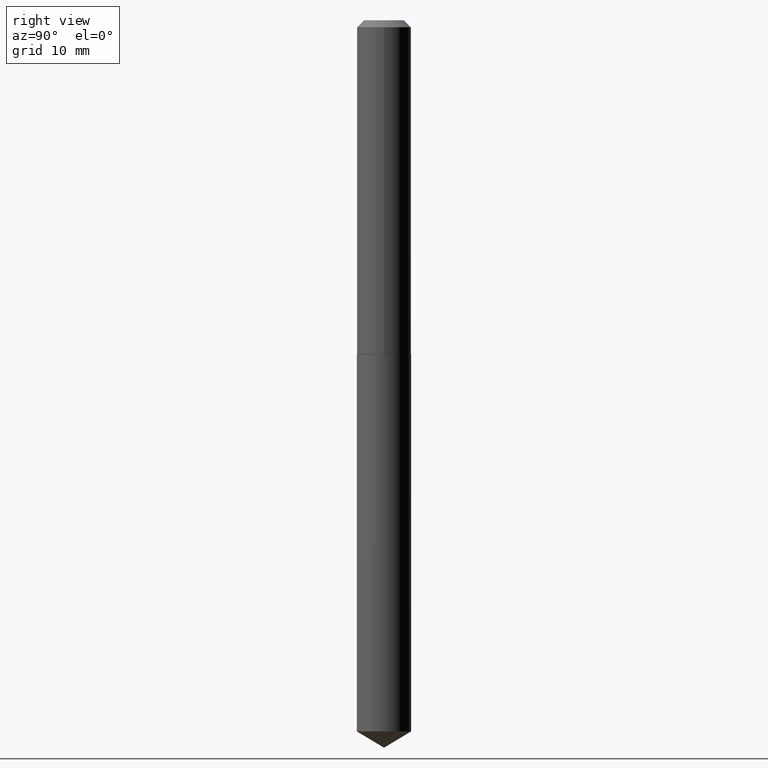
[diagram: clean part render]
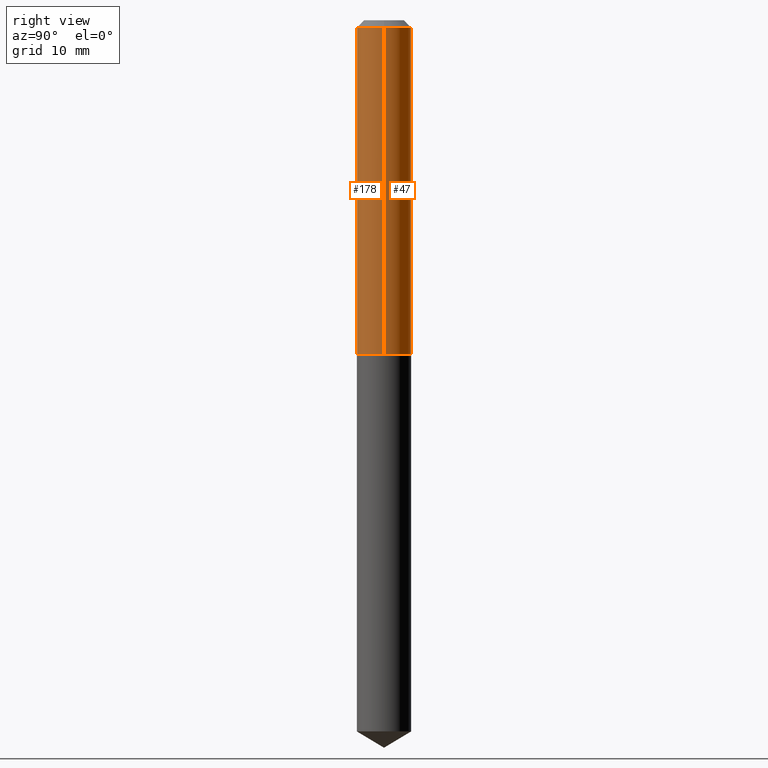
[diagram: same view with one multi-face feature highlighted, each face labeled with its STEP entity id]
A machine part, right view. The highlighted faces form ONE feature: a constant-radius fillet chain: 2 tangent blend faces with common blend radius 3.0734 mm. The faces share edges in the B-rep.
Their STEP definitions:
[1] entity #178 (Cylinder):
#5 = FACE_OUTER_BOUND ( 'NONE', #345, .T. ) ;
#7 = EDGE_CURVE ( 'NONE', #283, #144, #314, .T. ) ;
#50 = DIRECTION ( 'NONE',  ( -2.445468806185136877E-29, 3.491481338843145188E-15, 1.000000000000000000 ) ) ;
#56 = VERTEX_POINT ( 'NONE', #74 ) ;
#66 = CYLINDRICAL_SURFACE ( 'NONE', #192, 0.1210000000000001075 ) ;
#70 = DIRECTION ( 'NONE',  ( -2.445468806185136597E-29, 3.491481338843145583E-15, 1.000000000000000000 ) ) ;
#71 = CARTESIAN_POINT ( 'NONE',  ( 0.1210000000000001907, -6.052482900884591109E-15, -1.491500000000000270 ) ) ;
#73 = CARTESIAN_POINT ( 'NONE',  ( 0.1210000000000000242, -9.540472758388873963E-16, -0.03125000000000020123 ) ) ;
#74 = CARTESIAN_POINT ( 'NONE',  ( -0.1210000000000001907, -4.347787706614829839E-15, -1.491500000000000270 ) ) ;
#86 = CARTESIAN_POINT ( 'NONE',  ( -0.1210000000000000242, -1.798569894091978081E-15, -0.03125000000000020123 ) ) ;
#87 = CIRCLE ( 'NONE', #246, 0.1210000000000001907 ) ;
#94 = VERTEX_POINT ( 'NONE', #86 ) ;
#106 = DIRECTION ( 'NONE',  ( 1.000000000000000000, -6.982962677686266711E-15, 0.000000000000000000 ) ) ;
#113 = AXIS2_PLACEMENT_3D ( 'NONE', #177, #277, #106 ) ;
#134 = CARTESIAN_POINT ( 'NONE',  ( 3.647416724425131194E-29, -5.207544416884551827E-15, -1.491500000000000270 ) ) ;
#136 = EDGE_CURVE ( 'NONE', #94, #144, #301, .T. ) ;
#144 = VERTEX_POINT ( 'NONE', #73 ) ;
#153 = VECTOR ( 'NONE', #50, 39.37007874015748143 ) ;
#163 = LINE ( 'NONE', #186, #233 ) ;
#177 = CARTESIAN_POINT ( 'NONE',  ( 7.642090019328600035E-31, -1.091087918388489897E-16, -0.03125000000000020123 ) ) ;
#178 = ADVANCED_FACE ( 'NONE', ( #5 ), #66, .T. ) ;
#184 = DIRECTION ( 'NONE',  ( 1.000000000000000000, -6.982962677686266711E-15, 4.876176775795935793E-29 ) ) ;
#186 = CARTESIAN_POINT ( 'NONE',  ( -0.1210000000000001075, 8.597567102697219885E-16, -5.951911459208441511E-30 ) ) ;
#191 = DIRECTION ( 'NONE',  ( -2.445468806185136597E-29, 3.491481338843145583E-15, 1.000000000000000000 ) ) ;
#192 = AXIS2_PLACEMENT_3D ( 'NONE', #218, #70, #184 ) ;
#218 = CARTESIAN_POINT ( 'NONE',  ( 0.000000000000000000, 0.000000000000000000, 0.000000000000000000 ) ) ;
#233 = VECTOR ( 'NONE', #329, 39.37007874015748143 ) ;
#235 = ORIENTED_EDGE ( 'NONE', *, *, #361, .T. ) ;
#246 = AXIS2_PLACEMENT_3D ( 'NONE', #134, #191, #357 ) ;
#252 = ORIENTED_EDGE ( 'NONE', *, *, #136, .F. ) ;
#254 = ORIENTED_EDGE ( 'NONE', *, *, #266, .F. ) ;
#265 = ORIENTED_EDGE ( 'NONE', *, *, #7, .T. ) ;
#266 = EDGE_CURVE ( 'NONE', #56, #94, #163, .T. ) ;
#277 = DIRECTION ( 'NONE',  ( -2.445468806185136597E-29, 3.491481338843145583E-15, 1.000000000000000000 ) ) ;
#283 = VERTEX_POINT ( 'NONE', #71 ) ;
#296 = CARTESIAN_POINT ( 'NONE',  ( 0.1210000000000001075, -8.449384840000389859E-16, 5.900173898713087522E-30 ) ) ;
#301 = CIRCLE ( 'NONE', #113, 0.1210000000000000242 ) ;
#314 = LINE ( 'NONE', #296, #153 ) ;
#329 = DIRECTION ( 'NONE',  ( -2.445468806185136877E-29, 3.491481338843145188E-15, 1.000000000000000000 ) ) ;
#345 = EDGE_LOOP ( 'NONE', ( #254, #235, #265, #252 ) ) ;
#357 = DIRECTION ( 'NONE',  ( 1.000000000000000000, -6.982962677686265922E-15, 0.000000000000000000 ) ) ;
#361 = EDGE_CURVE ( 'NONE', #56, #283, #87, .T. ) ;
[2] entity #47 (Cylinder):
#7 = EDGE_CURVE ( 'NONE', #283, #144, #314, .T. ) ;
#29 = DIRECTION ( 'NONE',  ( 1.000000000000000000, -6.982962677686266711E-15, 0.000000000000000000 ) ) ;
#32 = AXIS2_PLACEMENT_3D ( 'NONE', #157, #128, #242 ) ;
#47 = ADVANCED_FACE ( 'NONE', ( #316 ), #380, .T. ) ;
#50 = DIRECTION ( 'NONE',  ( -2.445468806185136877E-29, 3.491481338843145188E-15, 1.000000000000000000 ) ) ;
#56 = VERTEX_POINT ( 'NONE', #74 ) ;
#71 = CARTESIAN_POINT ( 'NONE',  ( 0.1210000000000001907, -6.052482900884591109E-15, -1.491500000000000270 ) ) ;
#73 = CARTESIAN_POINT ( 'NONE',  ( 0.1210000000000000242, -9.540472758388873963E-16, -0.03125000000000020123 ) ) ;
#74 = CARTESIAN_POINT ( 'NONE',  ( -0.1210000000000001907, -4.347787706614829839E-15, -1.491500000000000270 ) ) ;
#75 = ORIENTED_EDGE ( 'NONE', *, *, #7, .F. ) ;
#86 = CARTESIAN_POINT ( 'NONE',  ( -0.1210000000000000242, -1.798569894091978081E-15, -0.03125000000000020123 ) ) ;
#94 = VERTEX_POINT ( 'NONE', #86 ) ;
#99 = CARTESIAN_POINT ( 'NONE',  ( 7.642090019328600035E-31, -1.091087918388489897E-16, -0.03125000000000020123 ) ) ;
#120 = ORIENTED_EDGE ( 'NONE', *, *, #286, .T. ) ;
#128 = DIRECTION ( 'NONE',  ( -2.445468806185136597E-29, 3.491481338843145583E-15, 1.000000000000000000 ) ) ;
#132 = CARTESIAN_POINT ( 'NONE',  ( 0.000000000000000000, 0.000000000000000000, 0.000000000000000000 ) ) ;
#144 = VERTEX_POINT ( 'NONE', #73 ) ;
#153 = VECTOR ( 'NONE', #50, 39.37007874015748143 ) ;
#154 = AXIS2_PLACEMENT_3D ( 'NONE', #99, #324, #29 ) ;
#157 = CARTESIAN_POINT ( 'NONE',  ( 3.647416724425131194E-29, -5.207544416884551827E-15, -1.491500000000000270 ) ) ;
#163 = LINE ( 'NONE', #186, #233 ) ;
#185 = CIRCLE ( 'NONE', #32, 0.1210000000000001907 ) ;
#186 = CARTESIAN_POINT ( 'NONE',  ( -0.1210000000000001075, 8.597567102697219885E-16, -5.951911459208441511E-30 ) ) ;
#225 = ORIENTED_EDGE ( 'NONE', *, *, #381, .F. ) ;
#233 = VECTOR ( 'NONE', #329, 39.37007874015748143 ) ;
#242 = DIRECTION ( 'NONE',  ( 1.000000000000000000, -6.982962677686265922E-15, 0.000000000000000000 ) ) ;
#266 = EDGE_CURVE ( 'NONE', #56, #94, #163, .T. ) ;
#275 = DIRECTION ( 'NONE',  ( 1.000000000000000000, -6.982962677686266711E-15, 4.876176775795935793E-29 ) ) ;
#283 = VERTEX_POINT ( 'NONE', #71 ) ;
#286 = EDGE_CURVE ( 'NONE', #283, #56, #185, .T. ) ;
#294 = ORIENTED_EDGE ( 'NONE', *, *, #266, .T. ) ;
#296 = CARTESIAN_POINT ( 'NONE',  ( 0.1210000000000001075, -8.449384840000389859E-16, 5.900173898713087522E-30 ) ) ;
#311 = CIRCLE ( 'NONE', #154, 0.1210000000000000242 ) ;
#314 = LINE ( 'NONE', #296, #153 ) ;
#316 = FACE_OUTER_BOUND ( 'NONE', #318, .T. ) ;
#318 = EDGE_LOOP ( 'NONE', ( #120, #294, #225, #75 ) ) ;
#320 = DIRECTION ( 'NONE',  ( -2.445468806185136597E-29, 3.491481338843145583E-15, 1.000000000000000000 ) ) ;
#324 = DIRECTION ( 'NONE',  ( -2.445468806185136597E-29, 3.491481338843145583E-15, 1.000000000000000000 ) ) ;
#329 = DIRECTION ( 'NONE',  ( -2.445468806185136877E-29, 3.491481338843145188E-15, 1.000000000000000000 ) ) ;
#350 = AXIS2_PLACEMENT_3D ( 'NONE', #132, #320, #275 ) ;
#380 = CYLINDRICAL_SURFACE ( 'NONE', #350, 0.1210000000000001075 ) ;
#381 = EDGE_CURVE ( 'NONE', #144, #94, #311, .T. ) ;